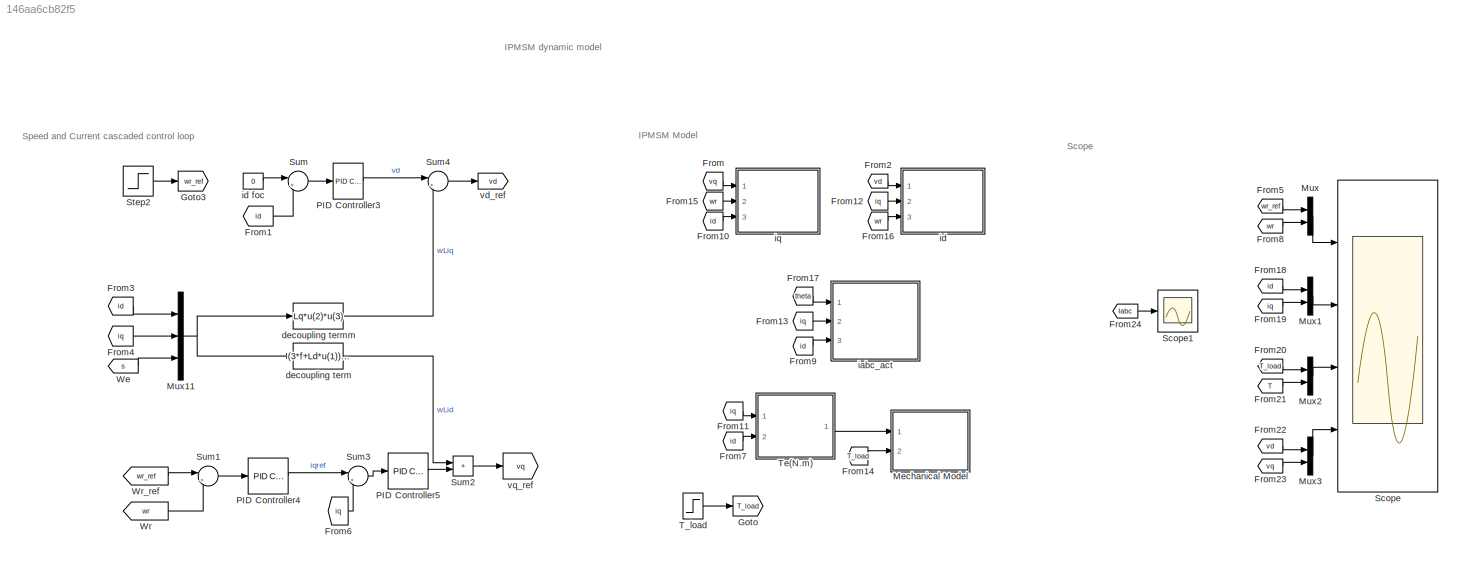
MODEL slx_146aa6cb82f5
KIND model
CONFIG AbsTol = auto
CONFIG EnableMultiTasking = off
CONFIG FixedStep = auto
CONFIG InitFcn = parameter
CONFIG MaxStep = auto
CONFIG MinStep = auto
CONFIG RelTol = 1e-3
CONFIG SampleTimeConstraint = Unconstrained
CONFIG Solver = ode4
CONFIG SolverName = ode4
CONFIG StartTime = 0.0
CONFIG StopTime = 2
BLOCK [From] From
  GotoTag = vq
  TagVisibility = global
BLOCK [From] From1
  GotoTag = id
  TagVisibility = global
BLOCK [From] From10
  GotoTag = id
  TagVisibility = global
BLOCK [From] From11
  GotoTag = iq
  TagVisibility = global
BLOCK [From] From12
  GotoTag = iq
  TagVisibility = global
BLOCK [From] From13
  GotoTag = iq
  TagVisibility = global
BLOCK [From] From14
  GotoTag = T_load
  TagVisibility = global
BLOCK [From] From15
  GotoTag = wr
  TagVisibility = global
BLOCK [From] From16
  GotoTag = wr
  TagVisibility = global
BLOCK [From] From17
  GotoTag = theta
  TagVisibility = global
BLOCK [From] From18
  GotoTag = id
  TagVisibility = global
BLOCK [From] From19
  GotoTag = iq
  TagVisibility = global
BLOCK [From] From2
  GotoTag = vd
  TagVisibility = global
BLOCK [From] From20
  GotoTag = T_load
  TagVisibility = global
BLOCK [From] From21
  GotoTag = T
  TagVisibility = global
BLOCK [From] From22
  GotoTag = vd
  TagVisibility = global
BLOCK [From] From23
  GotoTag = vq
  TagVisibility = global
BLOCK [From] From24
  GotoTag = Iabc
  TagVisibility = global
BLOCK [From] From3
  GotoTag = id
  TagVisibility = global
BLOCK [From] From4
  GotoTag = iq
  TagVisibility = global
BLOCK [From] From5
  GotoTag = wr_ref
  TagVisibility = global
BLOCK [From] From6
  GotoTag = iq
  TagVisibility = global
BLOCK [From] From7
  GotoTag = id
  TagVisibility = global
BLOCK [From] From8
  GotoTag = wr
  TagVisibility = global
BLOCK [From] From9
  GotoTag = id
  TagVisibility = global
BLOCK [Goto] Goto
  GotoTag = T_load
  TagVisibility = global
BLOCK [Goto] Goto3
  GotoTag = wr_ref
  TagVisibility = global
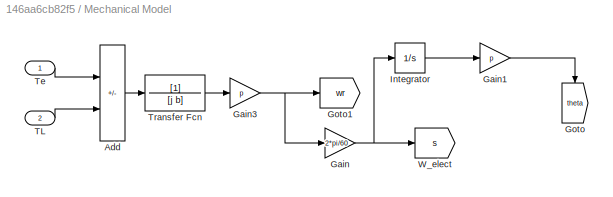
BLOCK [SubSystem] Mechanical Model
  Ports = [2]
BLOCK [Sum] Mechanical Model/Add
  IconShape = rectangular
  Inputs = +-
  Ports = [2, 1]
BLOCK [Gain] Mechanical Model/Gain
  Gain = 2*pi/60
BLOCK [Gain] Mechanical Model/Gain1
  Gain = p
BLOCK [Gain] Mechanical Model/Gain3
  Gain = p
BLOCK [Goto] Mechanical Model/Goto
  GotoTag = theta
  TagVisibility = global
BLOCK [Goto] Mechanical Model/Goto1
  GotoTag = wr
  TagVisibility = global
BLOCK [Integrator] Mechanical Model/Integrator
  Ports = [1, 1]
BLOCK [Inport] Mechanical Model/TL
  Port = 2
BLOCK [Inport] Mechanical Model/Te
BLOCK [TransferFcn] Mechanical Model/Transfer Fcn
  Denominator = [j b]
BLOCK [Goto] Mechanical Model/W_elect
  GotoTag = s
  TagVisibility = global
BLOCK [Mux] Mux
  DisplayOption = bar
  Inputs = 2
  Ports = [2, 1]
BLOCK [Mux] Mux1
  DisplayOption = bar
  Inputs = 2
  Ports = [2, 1]
BLOCK [Mux] Mux11
  DisplayOption = bar
  Inputs = 3
  Ports = [3, 1]
BLOCK [Mux] Mux2
  DisplayOption = bar
  Inputs = 2
  Ports = [2, 1]
BLOCK [Mux] Mux3
  DisplayOption = bar
  Inputs = 2
  Ports = [2, 1]
BLOCK [Reference] PID Controller3  REF=simulink/Continuous/PID Controller
  Ports = [1, 1]
  SourceBlock = simulink/Continuous/PID Controller
  SourceType = PID 1dof
BLOCK [Reference] PID Controller4  REF=simulink/Continuous/PID Controller
  Ports = [1, 1]
  SourceBlock = simulink/Continuous/PID Controller
  SourceType = PID 1dof
BLOCK [Reference] PID Controller5  REF=simulink/Continuous/PID Controller
  Ports = [1, 1]
  SourceBlock = simulink/Continuous/PID Controller
  SourceType = PID 1dof
BLOCK [Scope] Scope
  Floating = off
  NumInputPorts = 4
  Ports = [4]
  ScopeSpecificationString = Simulink.scopes.TimeScopeBlockCfg('CurrentConfiguration', extmgr.ConfigurationSet(extmgr.Configuration('Core','General UI',true,'FigureColor',[1 1 1]),extmgr.Configuration('Core','Source UI',true),extmgr.Configuration('Sources','WiredSimulink',true),extmgr.Configuration('Visuals','Time Domain',true,'SerializedDisplays',{struct('MinYLimReal','-75.00449','MaxYLimReal','675.0005','YLabelReal','','Min...<+7307ch>
BLOCK [Scope] Scope1
  Floating = off
  NumInputPorts = 1
  Ports = [1]
  ScopeSpecificationString = Simulink.scopes.TimeScopeBlockCfg('CurrentConfiguration', extmgr.ConfigurationSet(extmgr.Configuration('Core','General UI',true,'FigureColor',[1 1 1]),extmgr.Configuration('Core','Source UI',true),extmgr.Configuration('Sources','WiredSimulink',true,'DataLoggingVariableName','ScopeData1'),extmgr.Configuration('Visuals','Time Domain',true,'SerializedDisplays',{struct('MinYLimReal','-96.15802','MaxYL...<+2531ch>
BLOCK [Step] Step2
  After = 600
  Before = 600
  SampleTime = 1e-6
  Time = 0.5
BLOCK [Sum] Sum
  Inputs = |+-
  Ports = [2, 1]
BLOCK [Sum] Sum1
  Inputs = |+-
  Ports = [2, 1]
BLOCK [Sum] Sum2
  IconShape = rectangular
  Inputs = |++
  Ports = [2, 1]
BLOCK [Sum] Sum3
  Inputs = |+-
  Ports = [2, 1]
BLOCK [Sum] Sum4
  Inputs = |+-
  Ports = [2, 1]
BLOCK [Step] T_load
  After = 14
  Before = 6
  SampleTime = 1e-6
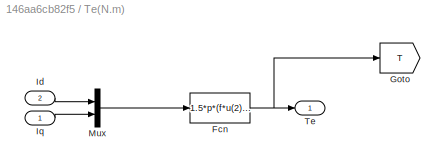
BLOCK [SubSystem] Te(N.m)
  Ports = [2, 1]
BLOCK [Fcn] Te(N.m)/Fcn
  Expr = 1.5*p*(f*u(2)-(Lq-Ld)*u(1)*u(2))
BLOCK [Goto] Te(N.m)/Goto
  GotoTag = T
  TagVisibility = global
BLOCK [Inport] Te(N.m)/Id
  Port = 2
BLOCK [Inport] Te(N.m)/Iq
BLOCK [Mux] Te(N.m)/Mux
  DisplayOption = bar
  Inputs = 2
  Ports = [2, 1]
BLOCK [Outport] Te(N.m)/Te
  VectorParamsAs1DForOutWhenUnconnected = off
BLOCK [From] We
  GotoTag = s
  TagVisibility = global
BLOCK [From] Wr
  GotoTag = wr
  IconDisplay = Signal name
  TagVisibility = global
BLOCK [From] Wr_ref
  GotoTag = wr_ref
  IconDisplay = Signal name
  TagVisibility = global
BLOCK [Fcn] decoupling term
  Expr = (3*f+Ld*u(1))*u(3)
BLOCK [Fcn] decoupling termm
  Expr = Lq*u(2)*u(3)
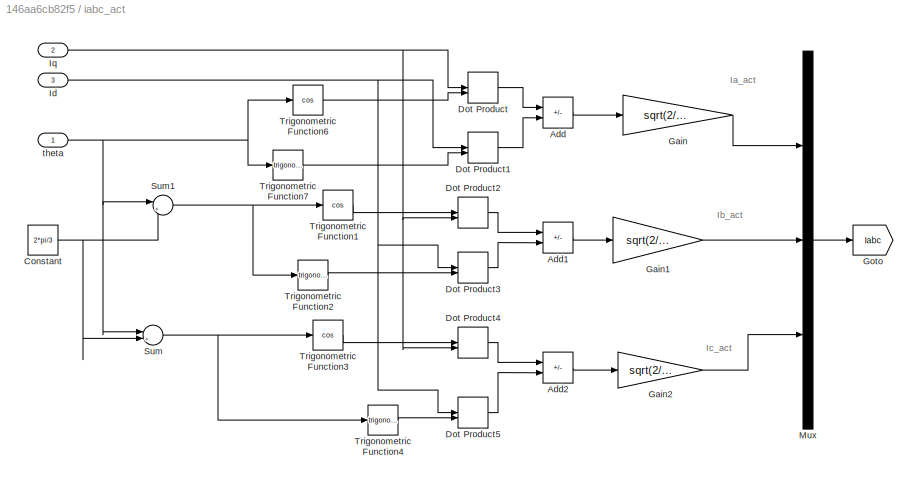
BLOCK [SubSystem] iabc_act
  Ports = [3]
BLOCK [Sum] iabc_act/Add
  IconShape = rectangular
  Inputs = -+
  Ports = [2, 1]
BLOCK [Sum] iabc_act/Add1
  IconShape = rectangular
  Inputs = -+
  Ports = [2, 1]
BLOCK [Sum] iabc_act/Add2
  IconShape = rectangular
  Inputs = -+
  Ports = [2, 1]
BLOCK [Constant] iabc_act/Constant
  Value = 2*pi/3
BLOCK [DotProduct] iabc_act/Dot Product
  OutDataTypeStr = Inherit: Inherit via internal rule
BLOCK [DotProduct] iabc_act/Dot Product1
  OutDataTypeStr = Inherit: Inherit via internal rule
BLOCK [DotProduct] iabc_act/Dot Product2
  OutDataTypeStr = Inherit: Inherit via internal rule
BLOCK [DotProduct] iabc_act/Dot Product3
  OutDataTypeStr = Inherit: Inherit via internal rule
BLOCK [DotProduct] iabc_act/Dot Product4
  OutDataTypeStr = Inherit: Inherit via internal rule
BLOCK [DotProduct] iabc_act/Dot Product5
  OutDataTypeStr = Inherit: Inherit via internal rule
BLOCK [Gain] iabc_act/Gain
  Gain = sqrt(2/3)
BLOCK [Gain] iabc_act/Gain1
  Gain = sqrt(2/3)
BLOCK [Gain] iabc_act/Gain2
  Gain = sqrt(2/3)
BLOCK [Goto] iabc_act/Goto
  GotoTag = Iabc
  TagVisibility = global
BLOCK [Inport] iabc_act/Id
  Port = 3
BLOCK [Inport] iabc_act/Iq
  Port = 2
BLOCK [Mux] iabc_act/Mux
  DisplayOption = bar
  Inputs = 3
  Ports = [3, 1]
BLOCK [Sum] iabc_act/Sum
  Inputs = |++
  Ports = [2, 1]
BLOCK [Sum] iabc_act/Sum1
  Inputs = |+-
  Ports = [2, 1]
BLOCK [Trigonometry] iabc_act/Trigonometric Function1
  Operator = cos
  Ports = [1, 1]
BLOCK [Trigonometry] iabc_act/Trigonometric Function2
  Ports = [1, 1]
BLOCK [Trigonometry] iabc_act/Trigonometric Function3
  Operator = cos
  Ports = [1, 1]
BLOCK [Trigonometry] iabc_act/Trigonometric Function4
  Ports = [1, 1]
BLOCK [Trigonometry] iabc_act/Trigonometric Function6
  Operator = cos
  Ports = [1, 1]
BLOCK [Trigonometry] iabc_act/Trigonometric Function7
  Ports = [1, 1]
BLOCK [Inport] iabc_act/theta
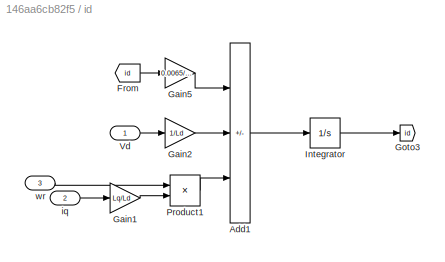
BLOCK [SubSystem] id
  Ports = [3]
BLOCK [Constant] id foc
  Value = 0
BLOCK [Sum] id/Add1
  IconShape = rectangular
  Inputs = -++
  Ports = [3, 1]
BLOCK [From] id/From
  GotoTag = id
  TagVisibility = global
BLOCK [Gain] id/Gain1
  Gain = Lq/Ld
BLOCK [Gain] id/Gain2
  Gain = 1/Ld
BLOCK [Gain] id/Gain5
  Gain = 0.0065/0.000538
BLOCK [Goto] id/Goto3
  GotoTag = id
  IconDisplay = Signal name
  TagVisibility = global
BLOCK [Integrator] id/Integrator
  Ports = [1, 1]
BLOCK [Product] id/Product1
  Ports = [2, 1]
  RndMeth = Zero
BLOCK [Inport] id/Vd
BLOCK [Inport] id/iq
  Port = 2
BLOCK [Inport] id/wr
  Port = 3
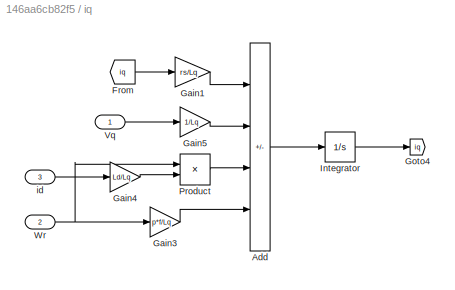
BLOCK [SubSystem] iq
  Ports = [3]
BLOCK [Sum] iq/Add
  IconShape = rectangular
  Inputs = -+--
  Ports = [4, 1]
BLOCK [From] iq/From
  GotoTag = iq
  TagVisibility = global
BLOCK [Gain] iq/Gain1
  Gain = rs/Lq
BLOCK [Gain] iq/Gain3
  Gain = p*f/Lq
BLOCK [Gain] iq/Gain4
  Gain = Ld/Lq
BLOCK [Gain] iq/Gain5
  Gain = 1/Lq
BLOCK [Goto] iq/Goto4
  GotoTag = iq
  IconDisplay = Signal name
  TagVisibility = global
BLOCK [Integrator] iq/Integrator
  Ports = [1, 1]
BLOCK [Product] iq/Product
  Ports = [2, 1]
  RndMeth = Zero
BLOCK [Inport] iq/Vq
BLOCK [Inport] iq/Wr
  Port = 2
BLOCK [Inport] iq/id
  Port = 3
BLOCK [Goto] vd_ref
  GotoTag = vd
  TagVisibility = global
BLOCK [Goto] vq_ref
  GotoTag = vq
  TagVisibility = global
ANNOTATION (root): IPMSM Model
ANNOTATION (root): IPMSM dynamic model
ANNOTATION (root): Scope
ANNOTATION (root): Speed and Current cascaded control loop
ANNOTATION iabc_act: Ia_act
ANNOTATION iabc_act: Ib_act
ANNOTATION iabc_act: Ic_act
LINE From10:1 -> iq:3
LINE From11:1 -> Te(N.m):1
LINE From12:1 -> id:2
LINE From13:1 -> iabc_act:2
LINE From14:1 -> Mechanical Model:2
LINE From15:1 -> iq:2
LINE From16:1 -> id:3
LINE From17:1 -> iabc_act:1
LINE From18:1 -> Mux1:1
LINE From19:1 -> Mux1:2
LINE From1:1 -> Sum:2
LINE From20:1 -> Mux2:1
LINE From21:1 -> Mux2:2
LINE From22:1 -> Mux3:1
LINE From23:1 -> Mux3:2
LINE From24:1 -> Scope1:1
LINE From2:1 -> id:1
LINE From3:1 -> Mux11:1
LINE From4:1 -> Mux11:2
LINE From5:1 -> Mux:1
LINE From6:1 -> Sum3:2
LINE From7:1 -> Te(N.m):2
LINE From8:1 -> Mux:2
LINE From9:1 -> iabc_act:3
LINE From:1 -> iq:1
LINE Mechanical Model/Add:1 -> Mechanical Model/Transfer Fcn:1
LINE Mechanical Model/Gain1:1 -> Mechanical Model/Goto:1
NET Mechanical Model/Gain3:1 -> Mechanical Model/Gain:1, Mechanical Model/Goto1:1
NET Mechanical Model/Gain:1 -> Mechanical Model/Integrator:1, Mechanical Model/W_elect:1
LINE Mechanical Model/Integrator:1 -> Mechanical Model/Gain1:1
LINE Mechanical Model/TL:1 -> Mechanical Model/Add:2
LINE Mechanical Model/Te:1 -> Mechanical Model/Add:1
LINE Mechanical Model/Transfer Fcn:1 -> Mechanical Model/Gain3:1
NET Mux11:1 -> decoupling term:1, decoupling termm:1
LINE Mux1:1 -> Scope:2
LINE Mux2:1 -> Scope:3
LINE Mux3:1 -> Scope:4
LINE Mux:1 -> Scope:1
LINE PID Controller3:1 -> Sum4:1
LINE PID Controller4:1 -> Sum3:1
LINE PID Controller5:1 -> Sum2:2
LINE Step2:1 -> Goto3:1
LINE Sum1:1 -> PID Controller4:1
LINE Sum2:1 -> vq_ref:1
LINE Sum3:1 -> PID Controller5:1
LINE Sum4:1 -> vd_ref:1
LINE Sum:1 -> PID Controller3:1
LINE T_load:1 -> Goto:1
NET Te(N.m)/Fcn:1 -> Te(N.m)/Goto:1, Te(N.m)/Te:1
LINE Te(N.m)/Id:1 -> Te(N.m)/Mux:1
LINE Te(N.m)/Iq:1 -> Te(N.m)/Mux:2
LINE Te(N.m)/Mux:1 -> Te(N.m)/Fcn:1
LINE Te(N.m):1 -> Mechanical Model:1
LINE We:1 -> Mux11:3
LINE Wr:1 -> Sum1:2
LINE Wr_ref:1 -> Sum1:1
LINE decoupling term:1 -> Sum2:1
LINE decoupling termm:1 -> Sum4:2
LINE iabc_act/Add1:1 -> iabc_act/Gain1:1
LINE iabc_act/Add2:1 -> iabc_act/Gain2:1
LINE iabc_act/Add:1 -> iabc_act/Gain:1
NET iabc_act/Constant:1 -> iabc_act/Sum1:2, iabc_act/Sum:2
LINE iabc_act/Dot Product1:1 -> iabc_act/Add:2
LINE iabc_act/Dot Product2:1 -> iabc_act/Add1:1
LINE iabc_act/Dot Product3:1 -> iabc_act/Add1:2
LINE iabc_act/Dot Product4:1 -> iabc_act/Add2:1
LINE iabc_act/Dot Product5:1 -> iabc_act/Add2:2
LINE iabc_act/Dot Product:1 -> iabc_act/Add:1
LINE iabc_act/Gain1:1 -> iabc_act/Mux:2
LINE iabc_act/Gain2:1 -> iabc_act/Mux:3
LINE iabc_act/Gain:1 -> iabc_act/Mux:1
NET iabc_act/Id:1 -> iabc_act/Dot Product1:1, iabc_act/Dot Product3:1, iabc_act/Dot Product5:1
NET iabc_act/Iq:1 -> iabc_act/Dot Product2:2, iabc_act/Dot Product4:2, iabc_act/Dot Product:1
LINE iabc_act/Mux:1 -> iabc_act/Goto:1
NET iabc_act/Sum1:1 -> iabc_act/Trigonometric Function1:1, iabc_act/Trigonometric Function2:1
NET iabc_act/Sum:1 -> iabc_act/Trigonometric Function3:1, iabc_act/Trigonometric Function4:1
LINE iabc_act/Trigonometric Function1:1 -> iabc_act/Dot Product2:1
LINE iabc_act/Trigonometric Function2:1 -> iabc_act/Dot Product3:2
LINE iabc_act/Trigonometric Function3:1 -> iabc_act/Dot Product4:1
LINE iabc_act/Trigonometric Function4:1 -> iabc_act/Dot Product5:2
LINE iabc_act/Trigonometric Function6:1 -> iabc_act/Dot Product:2
LINE iabc_act/Trigonometric Function7:1 -> iabc_act/Dot Product1:2
NET iabc_act/theta:1 -> iabc_act/Sum1:1, iabc_act/Sum:1, iabc_act/Trigonometric Function6:1, iabc_act/Trigonometric Function7:1
LINE id foc:1 -> Sum:1
LINE id/Add1:1 -> id/Integrator:1
LINE id/From:1 -> id/Gain5:1
LINE id/Gain1:1 -> id/Product1:2
LINE id/Gain2:1 -> id/Add1:2
LINE id/Gain5:1 -> id/Add1:1
LINE id/Integrator:1 -> id/Goto3:1
LINE id/Product1:1 -> id/Add1:3
LINE id/Vd:1 -> id/Gain2:1
LINE id/iq:1 -> id/Gain1:1
LINE id/wr:1 -> id/Product1:1
LINE iq/Add:1 -> iq/Integrator:1
LINE iq/From:1 -> iq/Gain1:1
LINE iq/Gain1:1 -> iq/Add:1
LINE iq/Gain3:1 -> iq/Add:4
LINE iq/Gain4:1 -> iq/Product:2
LINE iq/Gain5:1 -> iq/Add:2
LINE iq/Integrator:1 -> iq/Goto4:1
LINE iq/Product:1 -> iq/Add:3
LINE iq/Vq:1 -> iq/Gain5:1
NET iq/Wr:1 -> iq/Gain3:1, iq/Product:1
LINE iq/id:1 -> iq/Gain4:1
note: NET lines group one-source signal fan-out (src -> all destinations, sorted); 1:1 wires keep LINE
